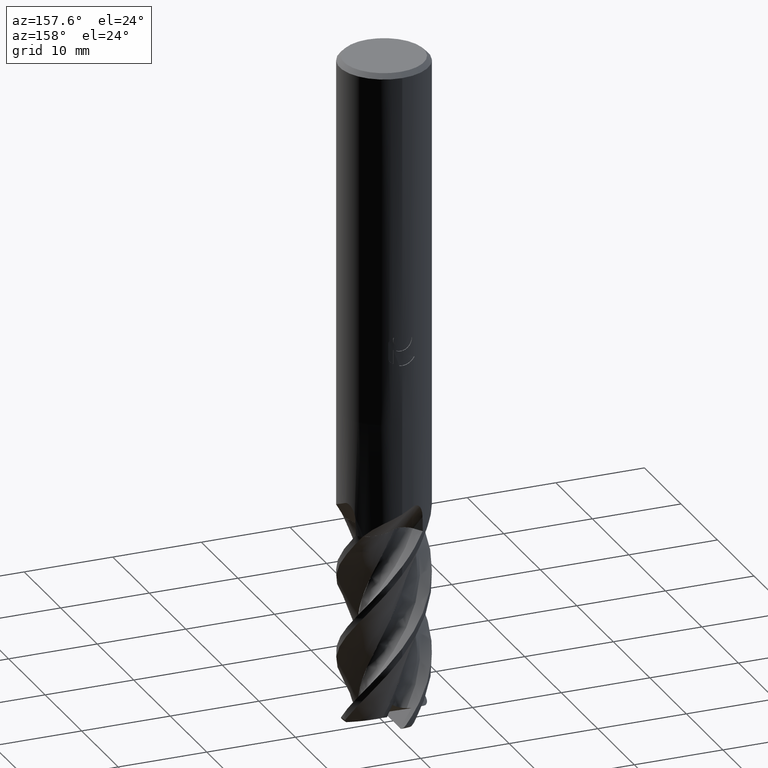
[diagram: clean part render]
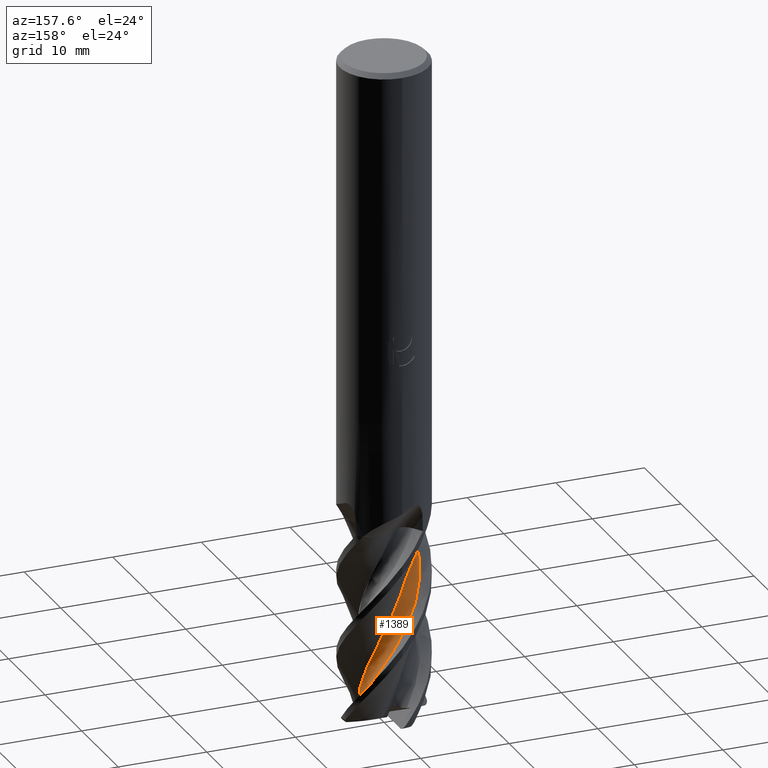
[diagram: same view with one face highlighted and labeled with its STEP entity id]
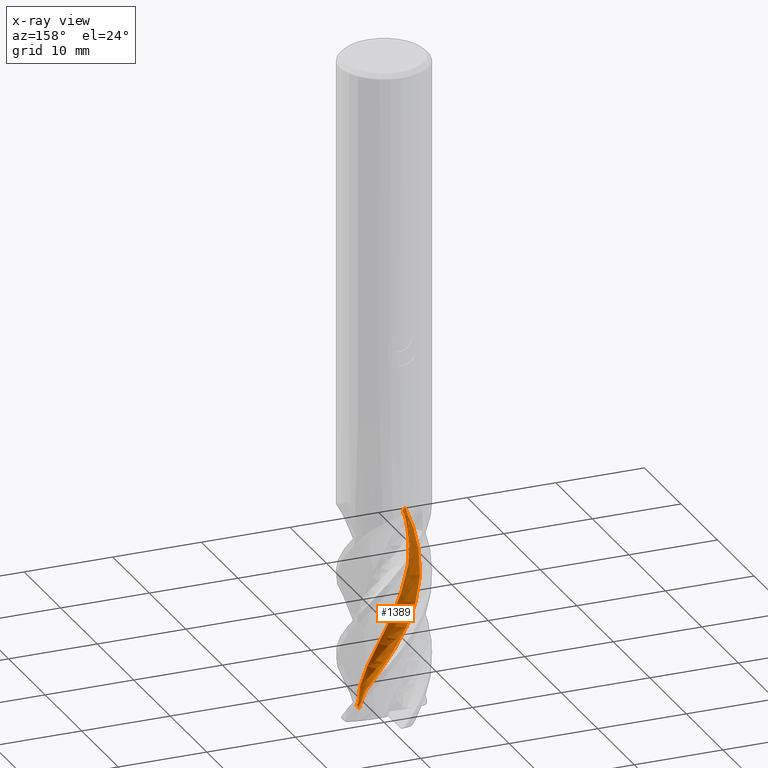
[diagram: x-ray of the same camera — body ghosted, the highlighted face saturated]
A machine part, auxiliary view. The second image highlights one B-rep face of the part: STEP entity #1389.
The next image is the same camera in x-ray: the body ghosted, the highlighted face saturated — about 0% of this face is hidden behind the body in this view.
In plain terms, the highlighted face is a freeform B-spline surface patch.
Its self-contained STEP definition (entity closure, byte-faithful):
#559=VERTEX_POINT('',#1594);
#561=EDGE_CURVE('',#1183,#1511,#1596,.T.);
#595=EDGE_CURVE('',#1183,#559,#1635,.T.);
#599=VERTEX_POINT('',#1639);
#663=EDGE_CURVE('',#983,#1511,#1709,.T.);
#841=EDGE_CURVE('',#927,#599,#1902,.T.);
#927=VERTEX_POINT('',#1994);
#983=VERTEX_POINT('',#2054);
#1183=VERTEX_POINT('',#2275);
#1389=ADVANCED_FACE('',(#2504),#2505,.T.);
#1409=EDGE_CURVE('',#599,#983,#2526,.T.);
#1493=EDGE_CURVE('',#559,#927,#2617,.T.);
#1511=VERTEX_POINT('',#2636);
#1594=CARTESIAN_POINT('',(2.5984239064342,-0.128623148143447,-73.0521997159675));
#1596=B_SPLINE_CURVE_WITH_KNOTS('',3,(#2837,#2838,#2839,#2840,#2841,#2842,#2843,#2844,#2845,#2846,#2847,#2848,#2849,#2850,#2851,#2852,#2853,#2854,#2855,#2856,#2857,#2858,#2859,#2860,#2861,#2862,#2863,#2864,#2865,#2866,#2867,#2868,#2869,#2870,#2871,#2872,#2873,#2874,#2875,#2876,#2877,#2878,#2879,#2880,#2881,#2882,#2883,#2884,#2885,#2886,#2887,#2888,#2889),.UNSPECIFIED.,.F.,.F.,(4,1,2,1,2,1,2,1,2,1,2,1,2,1,2,1,2,1,2,1,2,1,2,1,2,1,2,1,2,1,2,1,2,1,4),(0.0,0.658549239123413,1.31709847824683,1.97564771737024,2.63419695649365,3.95129543474048,5.2683939129873,6.58549239123413,7.90259086948096,9.21968934772778,10.5367878259746,11.8538863042214,13.1709847824683,14.4880832607151,15.8051817389619,17.1222802172087,18.4393786954556,19.7564771737024,21.0735756519492,22.390674130196,23.7077726084429,25.0248710866897,26.3419695649365,27.6590680431833,28.9761665214302,30.293264999677,31.6103634779238,32.9274619561707,34.2445604344175,35.5616589126643,36.8787573909111,38.195855869158,39.5129543474048,40.8300528256516,42.1471513038984),.UNSPECIFIED.);
#1635=B_SPLINE_CURVE_WITH_KNOTS('',3,(#3461,#3462,#3463,#3464,#3465,#3466,#3467,#3468,#3469,#3470,#3471,#3472),.UNSPECIFIED.,.F.,.F.,(4,2,2,2,2,4),(0.0,0.738804280504353,1.27129077827886,1.68829961093136,2.04639189604549,2.42527521460705),.UNSPECIFIED.);
#1639=CARTESIAN_POINT('',(2.45954279929878,-1.19233489788454,-74.4220119229883));
#1709=B_SPLINE_CURVE_WITH_KNOTS('',3,(#4196,#4197,#4198,#4199,#4200,#4201,#4202,#4203,#4204,#4205),.UNSPECIFIED.,.F.,.F.,(4,2,2,2,4),(0.0,0.561652873009568,1.12329456949985,1.68488858534868,2.24664184924053),.UNSPECIFIED.);
#1902=B_SPLINE_CURVE_WITH_KNOTS('',3,(#5891,#5892,#5893,#5894,#5895,#5896),.UNSPECIFIED.,.F.,.F.,(4,2,4),(0.0,0.537390108700414,1.05022974197968),.UNSPECIFIED.);
#1994=CARTESIAN_POINT('',(2.50463094801694,-0.702572962547088,-74.4073618954043));
#2054=CARTESIAN_POINT('',(-2.73326060225743,-0.00700924184387275,-53.0));
#2275=CARTESIAN_POINT('',(3.60114669389617,1.09334985087204,-73.2244277868559));
#2504=FACE_OUTER_BOUND('',#9296,.T.);
#2505=B_SPLINE_SURFACE_WITH_KNOTS('',3,3,((#9297,#9298,#9299,#9300,#9301,#9302,#9303,#9304,#9305,#9306,#9307,#9308,#9309,#9310,#9311,#9312,#9313,#9314,#9315,#9316,#9317,#9318,#9319,#9320,#9321,#9322,#9323,#9324,#9325,#9326,#9327,#9328,#9329,#9330,#9331,#9332,#9333,#9334,#9335,#9336,#9337,#9338,#9339,#9340,#9341,#9342,#9343,#9344,#9345,#9346,#9347,#9348,#9349),(#9350,#9351,#9352,#9353,#9354,#9355,#9356,#9357,#9358,#9359,#9360,#9361,#9362,#9363,#9364,#9365,#9366,#9367,#9368,#9369,#9370,#9371,#9372,#9373,#9374,#9375,#9376,#9377,#9378,#9379,#9380,#9381,#9382,#9383,#9384,#9385,#9386,#9387,#9388,#9389,#9390,#9391,#9392,#9393,#9394,#9395,#9396,#9397,#9398,#9399,#9400,#9401,#9402),(#9403,#9404,#9405,#9406,#9407,#9408,#9409,#9410,#9411,#9412,#9413,#9414,#9415,#9416,#9417,#9418,#9419,#9420,#9421,#9422,#9423,#9424,#9425,#9426,#9427,#9428,#9429,#9430,#9431,#9432,#9433,#9434,#9435,#9436,#9437,#9438,#9439,#9440,#9441,#9442,#9443,#9444,#9445,#9446,#9447,#9448,#9449,#9450,#9451,#9452,#9453,#9454,#9455),(#9456,#9457,#9458,#9459,#9460,#9461,#9462,#9463,#9464,#9465,#9466,#9467,#9468,#9469,#9470,#9471,#9472,#9473,#9474,#9475,#9476,#9477,#9478,#9479,#9480,#9481,#9482,#9483,#9484,#9485,#9486,#9487,#9488,#9489,#9490,#9491,#9492,#9493,#9494,#9495,#9496,#9497,#9498,#9499,#9500,#9501,#9502,#9503,#9504,#9505,#9506,#9507,#9508),(#9509,#9510,#9511,#9512,#9513,#9514,#9515,#9516,#9517,#9518,#9519,#9520,#9521,#9522,#9523,#9524,#9525,#9526,#9527,#9528,#9529,#9530,#9531,#9532,#9533,#9534,#9535,#9536,#9537,#9538,#9539,#9540,#9541,#9542,#9543,#9544,#9545,#9546,#9547,#9548,#9549,#9550,#9551,#9552,#9553,#9554,#9555,#9556,#9557,#9558,#9559,#9560,#9561),(#9562,#9563,#9564,#9565,#9566,#9567,#9568,#9569,#9570,#9571,#9572,#9573,#9574,#9575,#9576,#9577,#9578,#9579,#9580,#9581,#9582,#9583,#9584,#9585,#9586,#9587,#9588,#9589,#9590,#9591,#9592,#9593,#9594,#9595,#9596,#9597,#9598,#9599,#9600,#9601,#9602,#9603,#9604,#9605,#9606,#9607,#9608,#9609,#9610,#9611,#9612,#9613,#9614),(#9615,#9616,#9617,#9618,#9619,#9620,#9621,#9622,#9623,#9624,#9625,#9626,#9627,#9628,#9629,#9630,#9631,#9632,#9633,#9634,#9635,#9636,#9637,#9638,#9639,#9640,#9641,#9642,#9643,#9644,#9645,#9646,#9647,#9648,#9649,#9650,#9651,#9652,#9653,#9654,#9655,#9656,#9657,#9658,#9659,#9660,#9661,#9662,#9663,#9664,#9665,#9666,#9667)),.UNSPECIFIED.,.F.,.F.,.F.,(4,1,1,1,4),(4,1,2,1,2,1,2,1,2,1,2,1,2,1,2,1,2,1,2,1,2,1,2,1,2,1,2,1,2,1,2,1,2,1,4),(-3.08931624243522E-016,0.392699081663942,0.785398163327883,1.17809724499183,1.57079632665577),(0.0,0.658549239123413,1.31709847824683,1.97564771737024,2.63419695649365,3.95129543474048,5.2683939129873,6.58549239123413,7.90259086948096,9.21968934772778,10.5367878259746,11.8538863042214,13.1709847824683,14.4880832607151,15.8051817389619,17.1222802172087,18.4393786954556,19.7564771737024,21.0735756519492,22.390674130196,23.7077726084429,25.0248710866897,26.3419695649365,27.6590680431833,28.9761665214302,30.293264999677,31.6103634779238,32.9274619561707,34.2445604344175,35.5616589126643,36.8787573909111,38.195855869158,39.5129543474048,40.8300528256516,42.1471513038984),.UNSPECIFIED.);
#2526=B_SPLINE_CURVE_WITH_KNOTS('',3,(#9760,#9761,#9762,#9763,#9764,#9765,#9766,#9767,#9768,#9769,#9770,#9771,#9772,#9773,#9774,#9775,#9776,#9777,#9778,#9779,#9780,#9781,#9782,#9783,#9784,#9785,#9786,#9787,#9788,#9789,#9790,#9791,#9792,#9793,#9794,#9795,#9796,#9797,#9798,#9799,#9800,#9801,#9802,#9803,#9804,#9805),.UNSPECIFIED.,.F.,.F.,(4,2,2,2,2,2,2,2,2,2,2,2,2,2,2,2,2,2,2,2,2,2,4),(-23.8270921637703,-23.0025524785586,-22.1634033242761,-20.4971449249553,-19.362715641617,-18.7573362048185,-18.0925119293027,-16.5009544444563,-15.3863507805639,-13.8273167720449,-12.3666705483245,-10.9811504633505,-9.21207467241745,-8.81880289507193,-8.47099463603224,-7.82493261959522,-6.98913295290134,-5.57574228420226,-4.17242191512575,-2.47113657946669,-0.78633392943777,-0.368624576725634,-0.0),.UNSPECIFIED.);
#2617=B_SPLINE_CURVE_WITH_KNOTS('',3,(#10844,#10845,#10846,#10847,#10848,#10849,#10850,#10851,#10852,#10853,#10854,#10855),.UNSPECIFIED.,.F.,.F.,(4,2,2,2,2,4),(0.0,1.19257017579514,2.31244232522035,4.1451385850932,5.03450972220303,5.93260427718605),.UNSPECIFIED.);
#2636=CARTESIAN_POINT('',(-3.21236791552506,-1.96059927409612,-53.0));
#2837=CARTESIAN_POINT('',(-0.174203199938611,-3.75846504508571,-85.0));
#2838=CARTESIAN_POINT('',(-0.180367674164919,-3.75922417421371,-84.781257534348));
#2839=CARTESIAN_POINT('',(-0.101343983706272,-3.76659625728198,-84.3437017067897));
#2840=CARTESIAN_POINT('',(0.166872443505842,-3.76514038195834,-83.9061227876956));
#2841=CARTESIAN_POINT('',(0.525748748329141,-3.73059290488503,-83.4686790293266));
#2842=CARTESIAN_POINT('',(0.853419521872618,-3.67418562141778,-83.0312599785647));
#2843=CARTESIAN_POINT('',(1.12390867597707,-3.59371181488687,-82.5937922235737));
#2844=CARTESIAN_POINT('',(1.49508836855377,-3.46384525798217,-81.9374991454781));
#2845=CARTESIAN_POINT('',(1.97184736327811,-3.2393925556906,-81.0624396209978));
#2846=CARTESIAN_POINT('',(2.4110401264588,-2.90400512153349,-80.1874068062779));
#2847=CARTESIAN_POINT('',(2.82167058888249,-2.50649264281788,-79.3124420205515));
#2848=CARTESIAN_POINT('',(3.17357801079059,-2.07729339410272,-78.4374849235509));
#2849=CARTESIAN_POINT('',(3.42370937660027,-1.58763876135109,-77.5624771201081));
#2850=CARTESIAN_POINT('',(3.62139719684409,-1.06179339499986,-76.6874636115137));
#2851=CARTESIAN_POINT('',(3.7560348194121,-0.528045233548039,-75.812465434064));
#2852=CARTESIAN_POINT('',(3.77389672882266,0.0227563812656097,-74.9374521777107));
#2853=CARTESIAN_POINT('',(3.72844242991629,0.583877475730668,-74.0624554440398));
#2854=CARTESIAN_POINT('',(3.62250415173364,1.12416091114104,-73.1874694992744));
#2855=CARTESIAN_POINT('',(3.40400478492427,1.62960945578931,-72.3124569222851));
#2856=CARTESIAN_POINT('',(3.12358907741629,2.11788147370052,-71.4374554871606));
#2857=CARTESIAN_POINT('',(2.79723400787934,2.56162684890057,-70.5624665057969));
#2858=CARTESIAN_POINT('',(2.38395213524524,2.92567780536026,-69.6874539774211));
#2859=CARTESIAN_POINT('',(1.92222254608529,3.24765439708875,-68.8124536161588));
#2860=CARTESIAN_POINT('',(1.43794004710195,3.50980338627726,-67.9374652209048));
#2861=CARTESIAN_POINT('',(0.90890869378754,3.66288554470886,-67.0624526373256));
#2862=CARTESIAN_POINT('',(0.353901504744772,3.7572548754488,-66.1874521349676));
#2863=CARTESIAN_POINT('',(-0.195986430718188,3.78787536081154,-65.3124636789923));
#2864=CARTESIAN_POINT('',(-0.739810773391773,3.70074520138514,-64.4374510979044));
#2865=CARTESIAN_POINT('',(-1.28207916639166,3.54943330720816,-63.5624505838795));
#2866=CARTESIAN_POINT('',(-1.79252633141488,3.34264164739798,-62.6874621329671));
#2867=CARTESIAN_POINT('',(-2.24726530458449,3.03193515623659,-61.812449551569));
#2868=CARTESIAN_POINT('',(-2.67322628111993,2.66384433912378,-60.9374490151771));
#2869=CARTESIAN_POINT('',(-3.04675106378391,2.25913979009173,-60.0624605524643));
#2870=CARTESIAN_POINT('',(-3.32557940563273,1.78419724096644,-59.1874479820501));
#2871=CARTESIAN_POINT('',(-3.55390890138633,1.26962301412973,-58.3124474617861));
#2872=CARTESIAN_POINT('',(-3.71919688362253,0.74429401736151,-57.4374589866491));
#2873=CARTESIAN_POINT('',(-3.76888495198699,0.195814907648407,-56.5624463791087));
#2874=CARTESIAN_POINT('',(-3.75599902673512,-0.366981426245853,-55.6874458281175));
#2875=CARTESIAN_POINT('',(-3.68150497461483,-0.912657474235505,-54.8124574190809));
#2876=CARTESIAN_POINT('',(-3.49254974213338,-1.43001184003837,-53.937445075685));
#2877=CARTESIAN_POINT('',(-3.2408801103062,-1.93362453138251,-53.0624448592306));
#2878=CARTESIAN_POINT('',(-2.94081705337123,-2.39540700196463,-52.1874561530978));
#2879=CARTESIAN_POINT('',(-2.54930803179663,-2.78278411132209,-51.3124425858343));
#2880=CARTESIAN_POINT('',(-2.10684892968575,-3.1310410631116,-50.4374410272394));
#2881=CARTESIAN_POINT('',(-1.63839330809177,-3.42082265904292,-49.5624537630129));
#2882=CARTESIAN_POINT('',(-1.11945713400965,-3.60409016617578,-48.6874443570381));
#2883=CARTESIAN_POINT('',(-0.571684806512779,-3.73030487991702,-47.8124462662842));
#2884=CARTESIAN_POINT('',(-0.0247414562725736,-3.79294591409017,-46.9374525722856));
#2885=CARTESIAN_POINT('',(0.525697689422164,-3.73729567898617,-46.0624311257452));
#2886=CARTESIAN_POINT('',(1.07977270741542,-3.61626740837627,-45.1874270825808));
#2887=CARTESIAN_POINT('',(1.60075189261619,-3.43806007058996,-44.3124557440473));
#2888=CARTESIAN_POINT('',(2.0627164329609,-3.15984968329935,-43.4374654493909));
#2889=CARTESIAN_POINT('',(2.27997981087198,-2.99429631365515,-42.9999677084395));
#3461=CARTESIAN_POINT('',(3.60114669389616,1.09334985087204,-73.2244277868559));
#3462=CARTESIAN_POINT('',(3.3920942054817,0.982959833228619,-73.2934138359473));
#3463=CARTESIAN_POINT('',(3.1996951407302,0.847230707252837,-73.332105326347));
#3464=CARTESIAN_POINT('',(2.92436708308086,0.585174529087138,-73.3381966339903));
#3465=CARTESIAN_POINT('',(2.82118153184622,0.462280151989732,-73.3225464113388));
#3466=CARTESIAN_POINT('',(2.68179403370122,0.226653209790408,-73.2508264938398));
#3467=CARTESIAN_POINT('',(2.63761777977056,0.120239856676734,-73.2050387930557));
#3468=CARTESIAN_POINT('',(2.5958088611113,-0.076442771612339,-73.0919771905381));
#3469=CARTESIAN_POINT('',(2.59328118144478,-0.163253411773043,-73.030709432442));
#3470=CARTESIAN_POINT('',(2.62132553177348,-0.329239286299923,-72.8900999481689));
#3471=CARTESIAN_POINT('',(2.65334237283433,-0.404967716830744,-72.8122313905368));
#3472=CARTESIAN_POINT('',(2.69905071924196,-0.470187472831848,-72.7322269687654));
#4196=CARTESIAN_POINT('',(-2.73930492009428,0.00311115264046641,-53.0));
#4197=CARTESIAN_POINT('',(-2.64265037635078,-0.157227046289006,-53.0));
#4198=CARTESIAN_POINT('',(-2.57823701126731,-0.334911959245153,-53.0));
#4199=CARTESIAN_POINT('',(-2.52114648856455,-0.704965462275667,-53.0));
#4200=CARTESIAN_POINT('',(-2.52901348019747,-0.893797448199707,-53.0));
#4201=CARTESIAN_POINT('',(-2.61668761863336,-1.25779902745857,-53.0));
#4202=CARTESIAN_POINT('',(-2.69565059423472,-1.42949010858479,-53.0));
#4203=CARTESIAN_POINT('',(-2.91498031582104,-1.73297948899149,-53.0));
#4204=CARTESIAN_POINT('',(-3.05326538237736,-1.86186180967467,-53.0));
#4205=CARTESIAN_POINT('',(-3.21236791552506,-1.96059927409612,-53.0));
#5891=CARTESIAN_POINT('',(2.71828614200525,-0.213465001417893,-74.337941114675));
#5892=CARTESIAN_POINT('',(2.62493493440896,-0.363308630482763,-74.3682727606902));
#5893=CARTESIAN_POINT('',(2.55111128726138,-0.527217429491795,-74.3922595176997));
#5894=CARTESIAN_POINT('',(2.46190453526263,-0.86374137109112,-74.421244548461));
#5895=CARTESIAN_POINT('',(2.4442974932636,-1.0347926678197,-74.4269654231955));
#5896=CARTESIAN_POINT('',(2.46062111890334,-1.2040866006864,-74.4216615557112));
#9296=EDGE_LOOP('',(#12111,#12112,#12113,#12114,#12115,#12116));
#9297=CARTESIAN_POINT('',(-1.54360556596939,-2.25595059945322,-85.0));
#9298=CARTESIAN_POINT('',(-1.55408178169093,-2.26063948564571,-84.781272919791));
#9299=CARTESIAN_POINT('',(-1.51641264598207,-2.30476060589949,-84.3433987356039));
#9300=CARTESIAN_POINT('',(-1.34936151877365,-2.40763674452123,-83.9054073192498));
#9301=CARTESIAN_POINT('',(-1.1101002562005,-2.51990228207319,-83.4682946450262));
#9302=CARTESIAN_POINT('',(-0.883183885139822,-2.6079024224369,-83.0313324538865));
#9303=CARTESIAN_POINT('',(-0.684220159454474,-2.66174294064555,-82.5940389772524));
#9304=CARTESIAN_POINT('',(-0.404292205294132,-2.72527517656879,-81.9374992334709));
#9305=CARTESIAN_POINT('',(-0.0223285195172266,-2.77118040703788,-81.0621082449655));
#9306=CARTESIAN_POINT('',(0.379565966856027,-2.73206499985859,-80.1869000274928));
#9307=CARTESIAN_POINT('',(0.787444062949982,-2.64200096781998,-79.3121379176316));
#9308=CARTESIAN_POINT('',(1.17105062680991,-2.51098987448022,-78.4374240654264));
#9309=CARTESIAN_POINT('',(1.51500030492424,-2.30358850460567,-77.5623740976798));
#9310=CARTESIAN_POINT('',(1.83984393867905,-2.05265760076082,-76.687287166694));
#9311=CARTESIAN_POINT('',(2.12901118417249,-1.77336859925574,-75.8123019740066));
#9312=CARTESIAN_POINT('',(2.3523268732174,-1.43839897368845,-74.9372178375786));
#9313=CARTESIAN_POINT('',(2.53950502745879,-1.07209752482008,-74.0622424676157));
#9314=CARTESIAN_POINT('',(2.68191464594388,-0.696069720700717,-73.1873380588225));
#9315=CARTESIAN_POINT('',(2.74109839901221,-0.298187132704078,-72.3122579234921));
#9316=CARTESIAN_POINT('',(2.7542312699893,0.113035125148912,-71.4372512983823));
#9317=CARTESIAN_POINT('',(2.72267828545763,0.514081564788531,-70.5623268333692));
#9318=CARTESIAN_POINT('',(2.60648101790342,0.899273675155992,-69.6872471469073));
#9319=CARTESIAN_POINT('',(2.44305141518256,1.27672578154601,-68.8122476710103));
#9320=CARTESIAN_POINT('',(2.24356448694805,1.62593807916406,-67.9373270804835));
#9321=CARTESIAN_POINT('',(1.97423614208132,1.92480755003963,-67.0622469952313));
#9322=CARTESIAN_POINT('',(1.66542333849184,2.19656987180025,-66.1872465698941));
#9323=CARTESIAN_POINT('',(1.33603675933408,2.42740007677147,-65.3123255741431));
#9324=CARTESIAN_POINT('',(0.964959579741338,2.58289168347044,-64.4372455153629));
#9325=CARTESIAN_POINT('',(0.569737605469039,2.69702342877495,-63.5622450218643));
#9326=CARTESIAN_POINT('',(0.173364846356305,2.76535544510649,-62.687324068093));
#9327=CARTESIAN_POINT('',(-0.228581378046822,2.74776518226741,-61.8122440024681));
#9328=CARTESIAN_POINT('',(-0.634726853410975,2.68247136247491,-60.9372433451325));
#9329=CARTESIAN_POINT('',(-1.02238630403604,2.57526125836702,-60.0623222845033));
#9330=CARTESIAN_POINT('',(-1.37845072179867,2.38795749518324,-59.1872422998888));
#9331=CARTESIAN_POINT('',(-1.71797180294471,2.15571614715482,-58.3122418061719));
#9332=CARTESIAN_POINT('',(-2.02289744597835,1.89344602460814,-57.4373207706079));
#9333=CARTESIAN_POINT('',(-2.26509459304372,1.57220515573542,-56.5622405122647));
#9334=CARTESIAN_POINT('',(-2.47316868362755,1.21737061279403,-55.6872396024355));
#9335=CARTESIAN_POINT('',(-2.63715718088406,0.850104239262245,-54.8123186041642));
#9336=CARTESIAN_POINT('',(-2.71925390426156,0.456215324984462,-53.9372401943458));
#9337=CARTESIAN_POINT('',(-2.75615175110103,0.0464934707066109,-53.0622422864579));
#9338=CARTESIAN_POINT('',(-2.74786913664081,-0.355614926146327,-52.1873208158442));
#9339=CARTESIAN_POINT('',(-2.65417290972395,-0.746894118841093,-51.3122339482806));
#9340=CARTESIAN_POINT('',(-2.51280175873635,-1.13328319206383,-50.4372242384531));
#9341=CARTESIAN_POINT('',(-2.33376657808231,-1.49353804737751,-49.5623067584045));
#9342=CARTESIAN_POINT('',(-2.08235936436787,-1.8072605420026,-48.6872491247872));
#9343=CARTESIAN_POINT('',(-1.79031949922064,-2.09607832327458,-47.8122739576708));
#9344=CARTESIAN_POINT('',(-1.47510913931255,-2.34566452967171,-46.9373356368225));
#9345=CARTESIAN_POINT('',(-1.11195519232819,-2.52311656957657,-46.0621979412064));
#9346=CARTESIAN_POINT('',(-0.720889333416862,-2.66036812491026,-45.1871507379803));
#9347=CARTESIAN_POINT('',(-0.329021755226477,-2.75046515399307,-44.3122949238694));
#9348=CARTESIAN_POINT('',(0.0647215412096091,-2.75654537481305,-43.4372982925821));
#9349=CARTESIAN_POINT('',(0.263324401633954,-2.7375602094705,-42.9997870870828));
#9350=CARTESIAN_POINT('',(-1.35563948611909,-2.26467216301469,-85.0));
#9351=CARTESIAN_POINT('',(-1.36609067385745,-2.26882164479764,-84.7812707843609));
#9352=CARTESIAN_POINT('',(-1.32811985141078,-2.30783091430698,-84.3434407852281));
#9353=CARTESIAN_POINT('',(-1.16127532766022,-2.39725726156674,-83.9055066207449));
#9354=CARTESIAN_POINT('',(-0.923793286637335,-2.49208504634824,-83.4683479938215));
#9355=CARTESIAN_POINT('',(-0.699733188980419,-2.56403924195801,-83.0313223952871));
#9356=CARTESIAN_POINT('',(-0.504878319337643,-2.60440736832327,-82.5940047296979));
#9357=CARTESIAN_POINT('',(-0.231634937905856,-2.64930894739841,-81.937499221705));
#9358=CARTESIAN_POINT('',(0.138839388419908,-2.67131436855624,-81.0621542356481));
#9359=CARTESIAN_POINT('',(0.523785175379346,-2.61036599195008,-80.1869703667051));
#9360=CARTESIAN_POINT('',(0.911721971002817,-2.49999836954003,-79.3121801219651));
#9361=CARTESIAN_POINT('',(1.2737383433608,-2.35154452844763,-78.4374325127563));
#9362=CARTESIAN_POINT('',(1.59307481159189,-2.13180889190986,-77.5623883974423));
#9363=CARTESIAN_POINT('',(1.89160348545587,-1.87120588919092,-76.6873116546311));
#9364=CARTESIAN_POINT('',(2.15400280965114,-1.5853751784764,-75.8123246677002));
#9365=CARTESIAN_POINT('',(2.34974543872759,-1.24972492199048,-74.937250349499));
#9366=CARTESIAN_POINT('',(2.50894679949052,-0.885896917065601,-74.0622720394616));
#9367=CARTESIAN_POINT('',(2.62435130333026,-0.515371586726382,-73.1873562939637));
#9368=CARTESIAN_POINT('',(2.65832000508439,-0.128621883048062,-72.3122855457097));
#9369=CARTESIAN_POINT('',(2.64719656658776,0.268431775308309,-71.4372796352014));
#9370=CARTESIAN_POINT('',(2.59355336422348,0.652979207938237,-70.5623462151454));
#9371=CARTESIAN_POINT('',(2.45929460097052,1.01734438810152,-69.6872758632594));
#9372=CARTESIAN_POINT('',(2.27997101466991,1.37164274451365,-68.8122762444422));
#9373=CARTESIAN_POINT('',(2.06754132405306,1.69651757760346,-67.9373462608912));
#9374=CARTESIAN_POINT('',(1.79075588797695,1.96884814332675,-67.0622755312739));
#9375=CARTESIAN_POINT('',(1.47743865715089,2.2128869611944,-66.1872751059367));
#9376=CARTESIAN_POINT('',(1.14672261703938,2.41618175749852,-65.3123447399712));
#9377=CARTESIAN_POINT('',(0.780217359232834,2.54448730384703,-64.437274047062));
#9378=CARTESIAN_POINT('',(0.392743117446356,2.63162124874933,-63.5622735535634));
#9379=CARTESIAN_POINT('',(0.00690973210884201,2.67447978462359,-62.6873432356309));
#9380=CARTESIAN_POINT('',(-0.379308487649879,2.63424904668774,-61.812272518926));
#9381=CARTESIAN_POINT('',(-0.766933923455232,2.54783936062393,-60.9372719024248));
#9382=CARTESIAN_POINT('',(-1.13419822222796,2.42208238366336,-60.062341469844));
#9383=CARTESIAN_POINT('',(-1.46638233046305,2.22100660246122,-59.1872708449953));
#9384=CARTESIAN_POINT('',(-1.78014784720691,1.97756279380779,-58.3122703512783));
#9385=CARTESIAN_POINT('',(-2.05871747753871,1.70721345539562,-57.4373399506649));
#9386=CARTESIAN_POINT('',(-2.27344232991793,1.38369819280169,-56.5622690893324));
#9387=CARTESIAN_POINT('',(-2.45344352206005,1.02971298101261,-55.6872682203376));
#9388=CARTESIAN_POINT('',(-2.59014628055523,0.666377000797168,-54.8123378813887));
#9389=CARTESIAN_POINT('',(-2.64642142761357,0.282146311219356,-53.9372686128626));
#9390=CARTESIAN_POINT('',(-2.65828678863522,-0.11483523833279,-53.0622704191341));
#9391=CARTESIAN_POINT('',(-2.62700077825756,-0.501753459775266,-52.1873395938875));
#9392=CARTESIAN_POINT('',(-2.514067151606,-0.873286421090242,-51.3122628993972));
#9393=CARTESIAN_POINT('',(-2.35548447052717,-1.23747445256076,-50.4372543329321));
#9394=CARTESIAN_POINT('',(-2.16211805422012,-1.57417503758341,-49.5623271575131));
#9395=CARTESIAN_POINT('',(-1.90173806566466,-1.86184999333181,-48.6872762231146));
#9396=CARTESIAN_POINT('',(-1.60360152949169,-2.12328808127527,-47.8122978709176));
#9397=CARTESIAN_POINT('',(-1.28545844199215,-2.34547201486607,-46.9373518806683));
#9398=CARTESIAN_POINT('',(-0.925301839435561,-2.49540960732544,-46.062230278637));
#9399=CARTESIAN_POINT('',(-0.540470056741438,-2.60508755193783,-45.1871891188972));
#9400=CARTESIAN_POINT('',(-0.157711318377256,-2.66917331068513,-44.3123172154438));
#9401=CARTESIAN_POINT('',(0.221891423496759,-2.65218098000332,-43.4373215237509));
#9402=CARTESIAN_POINT('',(0.41212328613993,-2.62238120015615,-42.9998121557981));
#9403=CARTESIAN_POINT('',(-0.983254726970415,-2.35685848540641,-85.0));
#9404=CARTESIAN_POINT('',(-0.993441370041004,-2.35993934094913,-84.7812665629195));
#9405=CARTESIAN_POINT('',(-0.952834512657806,-2.38884702340345,-84.3435239158341));
#9406=CARTESIAN_POINT('',(-0.781054646785255,-2.45129731605493,-83.905702932749));
#9407=CARTESIAN_POINT('',(-0.54019597319406,-2.51054939181068,-83.468453463231));
#9408=CARTESIAN_POINT('',(-0.31546637059358,-2.5492826263411,-83.0313025088513));
#9409=CARTESIAN_POINT('',(-0.123470027837231,-2.5610777268693,-82.5939370246681));
#9410=CARTESIAN_POINT('',(0.143815715424056,-2.56606760555029,-81.9374991973605));
#9411=CARTESIAN_POINT('',(0.500820208276255,-2.5357146357186,-81.0622451624786));
#9412=CARTESIAN_POINT('',(0.860557838557323,-2.42436966280902,-80.1871094131775));
#9413=CARTESIAN_POINT('',(1.21669442601658,-2.26547352050001,-79.3122635680287));
#9414=CARTESIAN_POINT('',(1.54247578994881,-2.07355594665993,-78.4374492085729));
#9415=CARTESIAN_POINT('',(1.81750106715752,-1.81936923667207,-77.5624166651386));
#9416=CARTESIAN_POINT('',(2.06725714166327,-1.52896167732527,-76.6873600681262));
#9417=CARTESIAN_POINT('',(2.27873326747997,-1.21940572168186,-75.8123695112308));
#9418=CARTESIAN_POINT('',(2.41961206941257,-0.87142975216462,-74.9373146630182));
#9419=CARTESIAN_POINT('',(2.52188801462884,-0.501422296500889,-74.0623304622117));
#9420=CARTESIAN_POINT('',(2.58110555194181,-0.131160707171734,-73.1873923670801));
#9421=CARTESIAN_POINT('',(2.56022765796672,0.243354978488346,-72.3123401460839));
#9422=CARTESIAN_POINT('',(2.49496749779184,0.621723197943942,-71.437335662834));
#9423=CARTESIAN_POINT('',(2.3905921537538,0.982063992880573,-70.562384543147));
#9424=CARTESIAN_POINT('',(2.21193593668086,1.31196646567956,-69.6873326041322));
#9425=CARTESIAN_POINT('',(1.99162372186641,1.62628747117289,-68.8123327623862));
#9426=CARTESIAN_POINT('',(1.74363588699711,1.90764448662901,-67.9373841511228));
#9427=CARTESIAN_POINT('',(1.44138590774263,2.129873806029,-67.0623319725014));
#9428=CARTESIAN_POINT('',(1.10803715161019,2.32026853765427,-66.1873314931655));
#9429=CARTESIAN_POINT('',(0.763712975218363,2.46903278592629,-65.3123826461521));
#9430=CARTESIAN_POINT('',(0.395538792288539,2.54115958117395,-64.437330446964));
#9431=CARTESIAN_POINT('',(0.012820759280437,2.57122833016914,-63.5623299649296));
#9432=CARTESIAN_POINT('',(-0.362068133318119,2.55895952665966,-62.6873811087779));
#9433=CARTESIAN_POINT('',(-0.725840216290975,2.46720295003477,-61.8123289288055));
#9434=CARTESIAN_POINT('',(-1.08483033902945,2.33120572628461,-60.9373283242834));
#9435=CARTESIAN_POINT('',(-1.41868830907331,2.16025244572364,-60.0623794125103));
#9436=CARTESIAN_POINT('',(-1.70859843598194,1.92214214533641,-59.1873272829187));
#9437=CARTESIAN_POINT('',(-1.97531848821332,1.64605614693624,-58.312326777644));
#9438=CARTESIAN_POINT('',(-2.20439995458542,1.3490709983505,-57.4373778802428));
#9439=CARTESIAN_POINT('',(-2.36509626609745,1.01008324596912,-56.5623255671768));
#9440=CARTESIAN_POINT('',(-2.48862569832864,0.646632813995849,-55.6873248138694));
#9441=CARTESIAN_POINT('',(-2.56920554600432,0.280305490175318,-54.8123759487211));
#9442=CARTESIAN_POINT('',(-2.57000767310581,-0.0948810726407321,-53.9373248626802));
#9443=CARTESIAN_POINT('',(-2.5267523170581,-0.476341828166297,-53.0623259679958));
#9444=CARTESIAN_POINT('',(-2.44342862773163,-0.842033664762639,-52.1873767381127));
#9445=CARTESIAN_POINT('',(-2.28417599444548,-1.18173245436133,-51.3123201599828));
#9446=CARTESIAN_POINT('',(-2.08234900954983,-1.50837211291817,-50.437313802294));
#9447=CARTESIAN_POINT('',(-1.85095952530993,-1.80367306261113,-49.5623675011917));
#9448=CARTESIAN_POINT('',(-1.5622796716147,-2.04283203180846,-48.6873297894472));
#9449=CARTESIAN_POINT('',(-1.24106450327408,-2.25194668496442,-47.8123451517289));
#9450=CARTESIAN_POINT('',(-0.906160370970214,-2.42050384040491,-46.9373839456631));
#9451=CARTESIAN_POINT('',(-0.541055765854181,-2.51423220224419,-46.0622942987219));
#9452=CARTESIAN_POINT('',(-0.15772453438237,-2.56629548685804,-45.1872649051886));
#9453=CARTESIAN_POINT('',(0.217164031294224,-2.574747428042,-44.3123613891914));
#9454=CARTESIAN_POINT('',(0.577666688739805,-2.50599655142486,-43.4373673322105));
#9455=CARTESIAN_POINT('',(0.755460636857431,-2.45124327908559,-42.9998617153245));
#9456=CARTESIAN_POINT('',(-0.520073456334395,-2.6983900312624,-85.0));
#9457=CARTESIAN_POINT('',(-0.529280011980107,-2.70014170125316,-84.7812613391346));
#9458=CARTESIAN_POINT('',(-0.479220975195611,-2.71656246627218,-84.3436267827623));
#9459=CARTESIAN_POINT('',(-0.285115436291755,-2.74445887304314,-83.9059458539482));
#9460=CARTESIAN_POINT('',(-0.0191547588872604,-2.75634369688627,-83.4685839720661));
#9461=CARTESIAN_POINT('',(0.225573213063998,-2.74941917970476,-83.0312779015918));
#9462=CARTESIAN_POINT('',(0.430010168501604,-2.71997300218736,-82.5938532450041));
#9463=CARTESIAN_POINT('',(0.711950308846432,-2.66622793241039,-81.9374991675909));
#9464=CARTESIAN_POINT('',(1.08034281384928,-2.55557729266344,-81.0623576708548));
#9465=CARTESIAN_POINT('',(1.43407378850219,-2.35991523596558,-80.1872814839716));
#9466=CARTESIAN_POINT('',(1.77399510902122,-2.11550683834968,-79.3123668137126));
#9467=CARTESIAN_POINT('',(2.07450750022968,-1.84255069344217,-78.4374698736264));
#9468=CARTESIAN_POINT('',(2.30789700536024,-1.51518024258853,-77.5624516455084));
#9469=CARTESIAN_POINT('',(2.50716675100841,-1.15546761545295,-76.6874199745185));
#9470=CARTESIAN_POINT('',(2.66168615230027,-0.7837975956155,-75.8124250093513));
#9471=CARTESIAN_POINT('',(2.73360285302905,-0.38724442272779,-74.9373942314008));
#9472=CARTESIAN_POINT('',(2.76053124295709,0.0240053548159287,-74.0624027700139));
#9473=CARTESIAN_POINT('',(2.74172592469293,0.426155535908898,-73.1874369950008));
#9474=CARTESIAN_POINT('',(2.63781131568144,0.815200342327498,-72.3124077145213));
#9475=CARTESIAN_POINT('',(2.48679485855727,1.1987489482442,-71.4374049875824));
#9476=CARTESIAN_POINT('',(2.29821227985111,1.55466370447725,-70.5624319686448));
#9477=CARTESIAN_POINT('',(2.03824079755909,1.86228946167208,-69.6874028258709));
#9478=CARTESIAN_POINT('',(1.7381720619629,2.14473401889467,-68.8124026892527));
#9479=CARTESIAN_POINT('',(1.41592157588154,2.38619032122891,-67.9374310620213));
#9480=CARTESIAN_POINT('',(1.04961881259973,2.55360053270237,-67.0624017738312));
#9481=CARTESIAN_POINT('',(0.657713303391351,2.6811471695812,-66.1874013078935));
#9482=CARTESIAN_POINT('',(0.263225903208555,2.76214741116511,-65.3124295163257));
#9483=CARTESIAN_POINT('',(-0.139510701277371,2.75737220134056,-64.4374002684585));
#9484=CARTESIAN_POINT('',(-0.54839519580339,2.70562203017193,-63.5623997382433));
#9485=CARTESIAN_POINT('',(-0.939761576197424,2.6106676774706,-62.6874279963532));
#9486=CARTESIAN_POINT('',(-1.30200318298461,2.43461448206721,-61.8123987173682));
#9487=CARTESIAN_POINT('',(-1.64977235346883,2.21345408758686,-60.9373981558485));
#9488=CARTESIAN_POINT('',(-1.96327626745785,1.96068481066634,-60.0624263525533));
#9489=CARTESIAN_POINT('',(-2.21585710560558,1.64697974044294,-59.1873971280817));
#9490=CARTESIAN_POINT('',(-2.43611345537523,1.29864736559179,-58.3123965928909));
#9491=CARTESIAN_POINT('',(-2.61189788049813,0.936338081848485,-57.4374248048695));
#9492=CARTESIAN_POINT('',(-2.70659613315045,0.544891389499277,-56.5623954820152));
#9493=CARTESIAN_POINT('',(-2.75729296007456,0.135905206326114,-55.6873948156955));
#9494=CARTESIAN_POINT('',(-2.76180728751668,-0.266785280778377,-54.8124230997391));
#9495=CARTESIAN_POINT('',(-2.68053570473364,-0.661281536288691,-53.937394403785));
#9496=CARTESIAN_POINT('',(-2.55197692558762,-1.05287353515744,-53.0623947686833));
#9497=CARTESIAN_POINT('',(-2.38434745041849,-1.41901920348452,-52.1874226811302));
#9498=CARTESIAN_POINT('',(-2.14262531592024,-1.74118733452483,-51.3123909917934));
#9499=CARTESIAN_POINT('',(-1.85930993498746,-2.04061180369004,-50.4373874143423));
#9500=CARTESIAN_POINT('',(-1.55145752998771,-2.30036270182626,-49.562417407004));
#9501=CARTESIAN_POINT('',(-1.19570533102874,-2.48852723992767,-48.6873960823289));
#9502=CARTESIAN_POINT('',(-0.812468448007206,-2.63837332556619,-47.8124036490021));
#9503=CARTESIAN_POINT('',(-0.423550172084063,-2.74222896640033,-46.9374236772501));
#9504=CARTESIAN_POINT('',(-0.0193210594299658,-2.76089543392251,-46.0623734198411));
#9505=CARTESIAN_POINT('',(0.395004174694939,-2.73224718941256,-45.1873587831166));
#9506=CARTESIAN_POINT('',(0.790921782302482,-2.65907644554964,-44.3124159452233));
#9507=CARTESIAN_POINT('',(1.15466495343491,-2.50762723304884,-43.4374241287497));
#9508=CARTESIAN_POINT('',(1.32954531483477,-2.41115007475841,-42.9999230411986));
#9509=CARTESIAN_POINT('',(-0.222838826438054,-3.19117627023753,-85.0));
#9510=CARTESIAN_POINT('',(-0.230631240847845,-3.19207496917335,-84.7812580195397));
#9511=CARTESIAN_POINT('',(-0.167060979610525,-3.20057626314161,-84.3436921527715));
#9512=CARTESIAN_POINT('',(0.0608940038490971,-3.20509205564091,-83.9061002256648));
#9513=CARTESIAN_POINT('',(0.368172467001382,-3.1828204782022,-83.4686669080356));
#9514=CARTESIAN_POINT('',(0.648848835941033,-3.14136593120301,-83.0312622639068));
#9515=CARTESIAN_POINT('',(0.880561573736558,-3.07857793450606,-82.5938000050134));
#9516=CARTESIAN_POINT('',(1.19851716551631,-2.97617589710547,-81.9374991478881));
#9517=CARTESIAN_POINT('',(1.6081588429307,-2.79569670887508,-81.0624291700144));
#9518=CARTESIAN_POINT('',(1.98860629516336,-2.51983607641588,-80.1873908280227));
#9519=CARTESIAN_POINT('',(2.34626979440339,-2.19021833045316,-79.3124324280462));
#9520=CARTESIAN_POINT('',(2.65444772416547,-1.832721416295,-78.4374830063007));
#9521=CARTESIAN_POINT('',(2.87737576064683,-1.42180406606008,-77.5624738703516));
#9522=CARTESIAN_POINT('',(3.05652282100352,-0.978741144403112,-76.6874580484069));
#9523=CARTESIAN_POINT('',(3.1821897470637,-0.527888485396901,-75.8124602761401));
#9524=CARTESIAN_POINT('',(3.20898208260196,-0.0600651438623674,-74.9374447934963));
#9525=CARTESIAN_POINT('',(3.18207977310898,0.418121712047476,-74.0624487223457));
#9526=CARTESIAN_POINT('',(3.10339261235789,0.879590883388401,-73.1874653559696));
#9527=CARTESIAN_POINT('',(2.92832087554881,1.31383507276898,-72.3124506493294));
#9528=CARTESIAN_POINT('',(2.7000571694218,1.73498653109703,-71.4374490457908));
#9529=CARTESIAN_POINT('',(2.43198237117716,2.11903605199062,-70.5624621066781));
#9530=CARTESIAN_POINT('',(2.08835954612898,2.43719777331782,-69.6874474467374));
#9531=CARTESIAN_POINT('',(1.7024060113644,2.72071267053435,-68.812447130162));
#9532=CARTESIAN_POINT('',(1.29627579107956,2.95372338759494,-67.9374608595629));
#9533=CARTESIAN_POINT('',(0.849817236138283,3.0949979699745,-67.0624461544192));
#9534=CARTESIAN_POINT('',(0.379761188398087,3.18688783808602,-66.1874456506575));
#9535=CARTESIAN_POINT('',(-0.0870032138786545,3.22447756822974,-65.3124593144309));
#9536=CARTESIAN_POINT('',(-0.551100228443374,3.16187927153232,-64.4374446358586));
#9537=CARTESIAN_POINT('',(-1.01546973965859,3.04455039938366,-63.5624440806873));
#9538=CARTESIAN_POINT('',(-1.45370119553585,2.87950894634221,-62.6874577860136));
#9539=CARTESIAN_POINT('',(-1.84678695932302,2.62498900588037,-61.8124430768638));
#9540=CARTESIAN_POINT('',(-2.21677893281072,2.32085297977488,-60.9374425222851));
#9541=CARTESIAN_POINT('',(-2.54278675487787,1.98470548542246,-60.0624561955306));
#9542=CARTESIAN_POINT('',(-2.7898074986518,1.58687396657587,-59.1874414966019));
#9543=CARTESIAN_POINT('',(-2.99478319154961,1.15401319430945,-58.3124409759011));
#9544=CARTESIAN_POINT('',(-3.14632471305017,0.710955979803206,-57.437454627786));
#9545=CARTESIAN_POINT('',(-3.20012250682916,0.245787070268328,-56.5624398883957));
#9546=CARTESIAN_POINT('',(-3.20095515231072,-0.233140453222519,-55.6874393236942));
#9547=CARTESIAN_POINT('',(-3.14910831514573,-0.69853493791595,-54.8124530489582));
#9548=CARTESIAN_POINT('',(-2.99939873022091,-1.14227878987114,-53.9374386013694));
#9549=CARTESIAN_POINT('',(-2.79590565803294,-1.57587440886816,-53.0624384846768));
#9550=CARTESIAN_POINT('',(-2.55056032432669,-1.97470103038974,-52.1874518890336));
#9551=CARTESIAN_POINT('',(-2.22593665293106,-2.31223166442681,-51.3124359856161));
#9552=CARTESIAN_POINT('',(-1.85692014083431,-2.61769573561495,-50.4374342118378));
#9553=CARTESIAN_POINT('',(-1.46482008099711,-2.87386257450694,-49.5624491148699));
#9554=CARTESIAN_POINT('',(-1.02758594100111,-3.0405805800854,-48.6874382044273));
#9555=CARTESIAN_POINT('',(-0.564367060570766,-3.15940295901699,-47.8124408286638));
#9556=CARTESIAN_POINT('',(-0.10078587896966,-3.2241511484002,-46.9374488977654));
#9557=CARTESIAN_POINT('',(0.368314357975644,-3.18844038093665,-46.0624237503926));
#9558=CARTESIAN_POINT('',(0.842160975706189,-3.09708393711023,-45.1874183901735));
#9559=CARTESIAN_POINT('',(1.2887420713186,-2.95654981631594,-44.312450652692));
#9560=CARTESIAN_POINT('',(1.68712566836529,-2.72993624250984,-43.4374601961308));
#9561=CARTESIAN_POINT('',(1.87528084537266,-2.59379571999047,-42.9999620126309));
#9562=CARTESIAN_POINT('',(-0.165500433055259,-3.57049809401883,-85.0));
#9563=CARTESIAN_POINT('',(-0.172204313434945,-3.57123225001291,-84.7812574130313));
#9564=CARTESIAN_POINT('',(-0.0982925049050462,-3.57830315681699,-84.3437040957821));
#9565=CARTESIAN_POINT('',(0.156474149399649,-3.57705520667182,-83.9061284294714));
#9566=CARTESIAN_POINT('',(0.497912877941524,-3.54428871070457,-83.468682060255));
#9567=CARTESIAN_POINT('',(0.809537997575141,-3.49073931730879,-83.0312594070567));
#9568=CARTESIAN_POINT('',(1.06655517170143,-3.4143757068935,-82.5937902779404));
#9569=CARTESIAN_POINT('',(1.41910486823185,-3.29119558903214,-81.9374991445816));
#9570=CARTESIAN_POINT('',(1.87196520969448,-3.07823462828297,-81.0624422355156));
#9571=CARTESIAN_POINT('',(2.28932668967417,-2.75979808273837,-80.1874107995841));
#9572=CARTESIAN_POINT('',(2.67965555793071,-2.38222892595674,-79.3124444213174));
#9573=CARTESIAN_POINT('',(3.01412239500815,-1.97462162422627,-78.4374854027631));
#9574=CARTESIAN_POINT('',(3.2519219631799,-1.50958143797111,-77.5624779310088));
#9575=CARTESIAN_POINT('',(3.43994030239621,-1.01005198829506,-76.6874650043041));
#9576=CARTESIAN_POINT('',(3.56803889784148,-0.503072411412532,-75.8124667235487));
#9577=CARTESIAN_POINT('',(3.58522294218552,0.0201560817972318,-74.9374540229992));
#9578=CARTESIAN_POINT('',(3.54224486791795,0.553300624358566,-74.0624571259908));
#9579=CARTESIAN_POINT('',(3.44181177631487,1.06657949985367,-73.1874705395273));
#9580=CARTESIAN_POINT('',(3.23444781701985,1.54681410504986,-72.3124584812926));
#9581=CARTESIAN_POINT('',(2.96820312512871,2.01083122932418,-71.4374571074197));
#9582=CARTESIAN_POINT('',(2.65834928086504,2.43248803731313,-70.5624675987166));
#9583=CARTESIAN_POINT('',(2.26589613810804,2.77847958168429,-69.6874556150668));
#9584=CARTESIAN_POINT('',(1.82732189304841,3.08456450221139,-68.8124552333873));
#9585=CARTESIAN_POINT('',(1.36737814989867,3.33377316536732,-67.9374663239106));
#9586=CARTESIAN_POINT('',(0.864886448690631,3.47940088694351,-67.062454238158));
#9587=CARTESIAN_POINT('',(0.337603213801779,3.56926855951499,-66.1874537766344));
#9588=CARTESIAN_POINT('',(-0.184749180396816,3.59856234020125,-65.3124647678839));
#9589=CARTESIAN_POINT('',(-0.701387917868862,3.51600682228875,-64.4374526984904));
#9590=CARTESIAN_POINT('',(-1.21665928739981,3.37244535624634,-63.5624522252998));
#9591=CARTESIAN_POINT('',(-1.70163402660916,3.17619562137927,-62.6874632111687));
#9592=CARTESIAN_POINT('',(-2.13373409165719,2.88121939848338,-61.8124511728698));
#9593=CARTESIAN_POINT('',(-2.53858106118419,2.53165073057654,-60.9374506364779));
#9594=CARTESIAN_POINT('',(-2.89356100710248,2.14734318934308,-60.0624616430417));
#9595=CARTESIAN_POINT('',(-3.15861971639873,1.69628232929035,-59.187449603816));
#9596=CARTESIAN_POINT('',(-3.37574933133663,1.20746478283511,-58.3124490835519));
#9597=CARTESIAN_POINT('',(-3.5329607311053,0.708492612596134,-57.4374600757755));
#9598=CARTESIAN_POINT('',(-3.58037715360212,0.187486017114772,-56.5624480038509));
#9599=CARTESIAN_POINT('',(-3.56834336571861,-0.347237493939371,-55.6874474528596));
#9600=CARTESIAN_POINT('',(-3.49778244050426,-0.865628207035456,-54.8124585087321));
#9601=CARTESIAN_POINT('',(-3.31848800482704,-1.35716194842075,-53.9374467025586));
#9602=CARTESIAN_POINT('',(-3.07956119269976,-1.83574344256744,-53.0624464452699));
#9603=CARTESIAN_POINT('',(-2.79469060415332,-2.27452402469056,-52.187457209867));
#9604=CARTESIAN_POINT('',(-2.42292973887336,-2.64266571554232,-51.3124442631549));
#9605=CARTESIAN_POINT('',(-2.0026734009526,-2.97371335169564,-50.43744270456));
#9606=CARTESIAN_POINT('',(-1.55777348195053,-3.24916607342135,-49.5624549426069));
#9607=CARTESIAN_POINT('',(-1.06488574600274,-3.42346340602904,-48.6874458877999));
#9608=CARTESIAN_POINT('',(-0.54449371921351,-3.5435841900912,-47.8124476337086));
#9609=CARTESIAN_POINT('',(-0.0249529370688321,-3.60329523215441,-46.9374534661595));
#9610=CARTESIAN_POINT('',(0.497972061879119,-3.55064510220114,-46.0624330121521));
#9611=CARTESIAN_POINT('',(1.02447409063825,-3.43585364990498,-45.1874292139938));
#9612=CARTESIAN_POINT('',(1.51944292047333,-3.26675776721152,-44.312457044162));
#9613=CARTESIAN_POINT('',(1.95833631617528,-3.00269023580127,-43.4374667511473));
#9614=CARTESIAN_POINT('',(2.16478592105616,-2.84550894661189,-42.999969132699));
#9615=CARTESIAN_POINT('',(-0.174203199938611,-3.75846504508571,-85.0));
#9616=CARTESIAN_POINT('',(-0.180367674164919,-3.75922417421371,-84.781257534348));
#9617=CARTESIAN_POINT('',(-0.101343983706272,-3.76659625728198,-84.3437017067897));
#9618=CARTESIAN_POINT('',(0.166872443505842,-3.76514038195834,-83.9061227876956));
#9619=CARTESIAN_POINT('',(0.525748748329141,-3.73059290488503,-83.4686790293266));
#9620=CARTESIAN_POINT('',(0.853419521872618,-3.67418562141778,-83.0312599785647));
#9621=CARTESIAN_POINT('',(1.12390867597707,-3.59371181488687,-82.5937922235737));
#9622=CARTESIAN_POINT('',(1.49508836855377,-3.46384525798217,-81.9374991454781));
#9623=CARTESIAN_POINT('',(1.97184736327811,-3.2393925556906,-81.0624396209978));
#9624=CARTESIAN_POINT('',(2.4110401264588,-2.90400512153349,-80.1874068062779));
#9625=CARTESIAN_POINT('',(2.82167058888249,-2.50649264281788,-79.3124420205515));
#9626=CARTESIAN_POINT('',(3.17357801079059,-2.07729339410272,-78.4374849235509));
#9627=CARTESIAN_POINT('',(3.42370937660027,-1.58763876135109,-77.5624771201081));
#9628=CARTESIAN_POINT('',(3.62139719684409,-1.06179339499986,-76.6874636115137));
#9629=CARTESIAN_POINT('',(3.7560348194121,-0.528045233548039,-75.812465434064));
#9630=CARTESIAN_POINT('',(3.77389672882266,0.0227563812656097,-74.9374521777107));
#9631=CARTESIAN_POINT('',(3.72844242991629,0.583877475730668,-74.0624554440398));
#9632=CARTESIAN_POINT('',(3.62250415173364,1.12416091114104,-73.1874694992744));
#9633=CARTESIAN_POINT('',(3.40400478492427,1.62960945578931,-72.3124569222851));
#9634=CARTESIAN_POINT('',(3.12358907741629,2.11788147370052,-71.4374554871606));
#9635=CARTESIAN_POINT('',(2.79723400787934,2.56162684890057,-70.5624665057969));
#9636=CARTESIAN_POINT('',(2.38395213524524,2.92567780536026,-69.6874539774211));
#9637=CARTESIAN_POINT('',(1.92222254608529,3.24765439708875,-68.8124536161588));
#9638=CARTESIAN_POINT('',(1.43794004710195,3.50980338627726,-67.9374652209048));
#9639=CARTESIAN_POINT('',(0.90890869378754,3.66288554470886,-67.0624526373256));
#9640=CARTESIAN_POINT('',(0.353901504744772,3.7572548754488,-66.1874521349676));
#9641=CARTESIAN_POINT('',(-0.195986430718188,3.78787536081154,-65.3124636789923));
#9642=CARTESIAN_POINT('',(-0.739810773391773,3.70074520138514,-64.4374510979044));
#9643=CARTESIAN_POINT('',(-1.28207916639166,3.54943330720816,-63.5624505838795));
#9644=CARTESIAN_POINT('',(-1.79252633141488,3.34264164739798,-62.6874621329671));
#9645=CARTESIAN_POINT('',(-2.24726530458449,3.03193515623659,-61.812449551569));
#9646=CARTESIAN_POINT('',(-2.67322628111993,2.66384433912378,-60.9374490151771));
#9647=CARTESIAN_POINT('',(-3.04675106378391,2.25913979009173,-60.0624605524643));
#9648=CARTESIAN_POINT('',(-3.32557940563273,1.78419724096644,-59.1874479820501));
#9649=CARTESIAN_POINT('',(-3.55390890138633,1.26962301412973,-58.3124474617861));
#9650=CARTESIAN_POINT('',(-3.71919688362253,0.74429401736151,-57.4374589866491));
#9651=CARTESIAN_POINT('',(-3.76888495198699,0.195814907648407,-56.5624463791087));
#9652=CARTESIAN_POINT('',(-3.75599902673512,-0.366981426245853,-55.6874458281175));
#9653=CARTESIAN_POINT('',(-3.68150497461483,-0.912657474235505,-54.8124574190809));
#9654=CARTESIAN_POINT('',(-3.49254974213338,-1.43001184003837,-53.937445075685));
#9655=CARTESIAN_POINT('',(-3.2408801103062,-1.93362453138251,-53.0624448592306));
#9656=CARTESIAN_POINT('',(-2.94081705337123,-2.39540700196463,-52.1874561530978));
#9657=CARTESIAN_POINT('',(-2.54930803179663,-2.78278411132209,-51.3124425858343));
#9658=CARTESIAN_POINT('',(-2.10684892968575,-3.1310410631116,-50.4374410272394));
#9659=CARTESIAN_POINT('',(-1.63839330809177,-3.42082265904292,-49.5624537630129));
#9660=CARTESIAN_POINT('',(-1.11945713400965,-3.60409016617578,-48.6874443570381));
#9661=CARTESIAN_POINT('',(-0.571684806512779,-3.73030487991702,-47.8124462662842));
#9662=CARTESIAN_POINT('',(-0.0247414562725736,-3.79294591409017,-46.9374525722856));
#9663=CARTESIAN_POINT('',(0.525697689422164,-3.73729567898617,-46.0624311257452));
#9664=CARTESIAN_POINT('',(1.07977270741542,-3.61626740837627,-45.1874270825808));
#9665=CARTESIAN_POINT('',(1.60075189261619,-3.43806007058996,-44.3124557440473));
#9666=CARTESIAN_POINT('',(2.0627164329609,-3.15984968329935,-43.4374654493909));
#9667=CARTESIAN_POINT('',(2.27997981087198,-2.99429631365515,-42.9999677084395));
#9760=CARTESIAN_POINT('',(2.12038852076525,-1.725093407135,-75.8000102770608));
#9761=CARTESIAN_POINT('',(2.20030134821203,-1.62698476680727,-75.5216394724692));
#9762=CARTESIAN_POINT('',(2.27364330078416,-1.52298142417804,-75.2425733000591));
#9763=CARTESIAN_POINT('',(2.40690937738362,-1.30215942226065,-74.6819256271226));
#9764=CARTESIAN_POINT('',(2.46530788297966,-1.18720798947298,-74.4081936506597));
#9765=CARTESIAN_POINT('',(2.61527273757434,-0.834259603504002,-73.576089967666));
#9766=CARTESIAN_POINT('',(2.68178893157776,-0.587748265013097,-73.0133589837566));
#9767=CARTESIAN_POINT('',(2.73411600025771,-0.163843188770629,-72.0818132413253));
#9768=CARTESIAN_POINT('',(2.73856654314467,0.00802273198065631,-71.7180416653836));
#9769=CARTESIAN_POINT('',(2.72148766074525,0.269667452432388,-71.146808019374));
#9770=CARTESIAN_POINT('',(2.71106454907459,0.35998888113522,-70.9474729163987));
#9771=CARTESIAN_POINT('',(2.67997541467309,0.547385231547737,-70.5297695765863));
#9772=CARTESIAN_POINT('',(2.65834407412221,0.644612994706625,-70.3106659088613));
#9773=CARTESIAN_POINT('',(2.56672690225483,0.970348747877812,-69.569010936028));
#9774=CARTESIAN_POINT('',(2.4721866319311,1.18923070293242,-69.0663453575008));
#9775=CARTESIAN_POINT('',(2.26797747235409,1.53459627577785,-68.1886766674514));
#9776=CARTESIAN_POINT('',(2.17135697706902,1.66877355125684,-67.8246160307889));
#9777=CARTESIAN_POINT('',(1.91172604235045,1.96756271206383,-66.9570284966482));
#9778=CARTESIAN_POINT('',(1.74179044773263,2.11863511632085,-66.4775364027964));
#9779=CARTESIAN_POINT('',(1.37823429845975,2.37014141984509,-65.5116657529984));
#9780=CARTESIAN_POINT('',(1.18882409050148,2.47091489993577,-65.0391392247441));
#9781=CARTESIAN_POINT('',(0.799408104223413,2.62191809639862,-64.1285559348189));
#9782=CARTESIAN_POINT('',(0.603297776741994,2.67337053570095,-63.7000298975844));
#9783=CARTESIAN_POINT('',(0.150192097057398,2.74138715402173,-62.697087490667));
#9784=CARTESIAN_POINT('',(-0.109386856863448,2.74393673904033,-62.126088063931));
#9785=CARTESIAN_POINT('',(-0.425012728436779,2.70079484663215,-61.4392911995758));
#9786=CARTESIAN_POINT('',(-0.481362454370118,2.6912217678814,-61.3173889315418));
#9787=CARTESIAN_POINT('',(-0.587205918668105,2.66992327333933,-61.0846215430396));
#9788=CARTESIAN_POINT('',(-0.636388346979432,2.65861584749783,-60.9752194289248));
#9789=CARTESIAN_POINT('',(-0.77540169928265,2.62265600764091,-60.6625027076888));
#9790=CARTESIAN_POINT('',(-0.864141136394591,2.59481850761942,-60.4586114398956));
#9791=CARTESIAN_POINT('',(-1.06329852240793,2.52107994368786,-59.9915844388326));
#9792=CARTESIAN_POINT('',(-1.17298769566883,2.47206768840986,-59.72735815566));
#9793=CARTESIAN_POINT('',(-1.45919789360918,2.32048607810823,-59.0190554461249));
#9794=CARTESIAN_POINT('',(-1.62640929741845,2.2058318871137,-58.5907441857788));
#9795=CARTESIAN_POINT('',(-1.93080592462416,1.94501780136432,-57.7158332769572));
#9796=CARTESIAN_POINT('',(-2.06763913495532,1.79922373809466,-57.2754682287984));
#9797=CARTESIAN_POINT('',(-2.33229188067129,1.44616007137886,-56.3104536308813));
#9798=CARTESIAN_POINT('',(-2.44995461396707,1.23496038395271,-55.8008049530818));
#9799=CARTESIAN_POINT('',(-2.62649006956716,0.793418320683739,-54.7580335734112));
#9800=CARTESIAN_POINT('',(-2.68606860387409,0.561981723795033,-54.2327014004375));
#9801=CARTESIAN_POINT('',(-2.72126459843146,0.264401028386983,-53.5861332145091));
#9802=CARTESIAN_POINT('',(-2.72620783600231,0.205868127321762,-53.4608512379738));
#9803=CARTESIAN_POINT('',(-2.73208178754541,0.095679858885791,-53.2230937019414));
#9804=CARTESIAN_POINT('',(-2.73338415481183,0.0441849139184137,-53.1114679276103));
#9805=CARTESIAN_POINT('',(-2.73326038923969,-0.00709809863802957,-52.9998065275787));
#10844=CARTESIAN_POINT('',(2.33341702574527,1.17888117122723,-70.3764663837597));
#10845=CARTESIAN_POINT('',(2.41683106047622,0.992905143935313,-70.7177578474905));
#10846=CARTESIAN_POINT('',(2.47903519121447,0.812863677498903,-71.0641012886386));
#10847=CARTESIAN_POINT('',(2.56337058126244,0.471503668675654,-71.7496549332905));
#10848=CARTESIAN_POINT('',(2.58744425118828,0.311466994387271,-72.0843489872317));
#10849=CARTESIAN_POINT('',(2.61242267118073,-0.103565296258205,-72.984522505378));
#10850=CARTESIAN_POINT('',(2.58875231030313,-0.351895789158988,-73.5563241221881));
#10851=CARTESIAN_POINT('',(2.50800766670685,-0.700090069819909,-74.3989458519477));
#10852=CARTESIAN_POINT('',(2.47424047712154,-0.811788177972287,-74.6760127135362));
#10853=CARTESIAN_POINT('',(2.39090223984769,-1.03195488808051,-75.2365587374714));
#10854=CARTESIAN_POINT('',(2.34136543767007,-1.13988965922436,-75.5188230109976));
#10855=CARTESIAN_POINT('',(2.28432406561259,-1.24446491156678,-75.8000773705256));
#12111=ORIENTED_EDGE('',*,*,#841,.F.);
#12112=ORIENTED_EDGE('',*,*,#1493,.F.);
#12113=ORIENTED_EDGE('',*,*,#595,.F.);
#12114=ORIENTED_EDGE('',*,*,#561,.T.);
#12115=ORIENTED_EDGE('',*,*,#663,.F.);
#12116=ORIENTED_EDGE('',*,*,#1409,.F.);